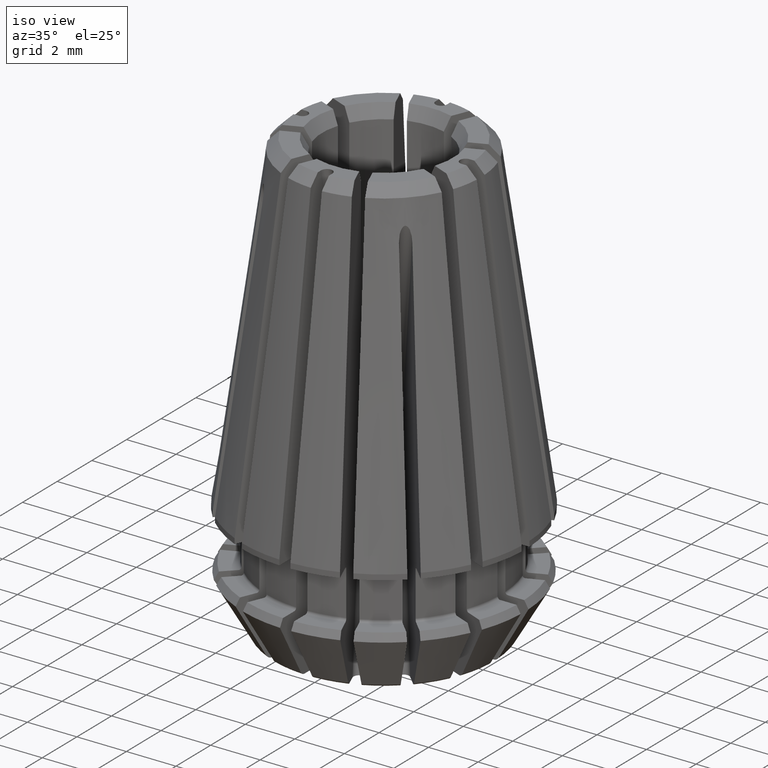
[diagram: clean part render]
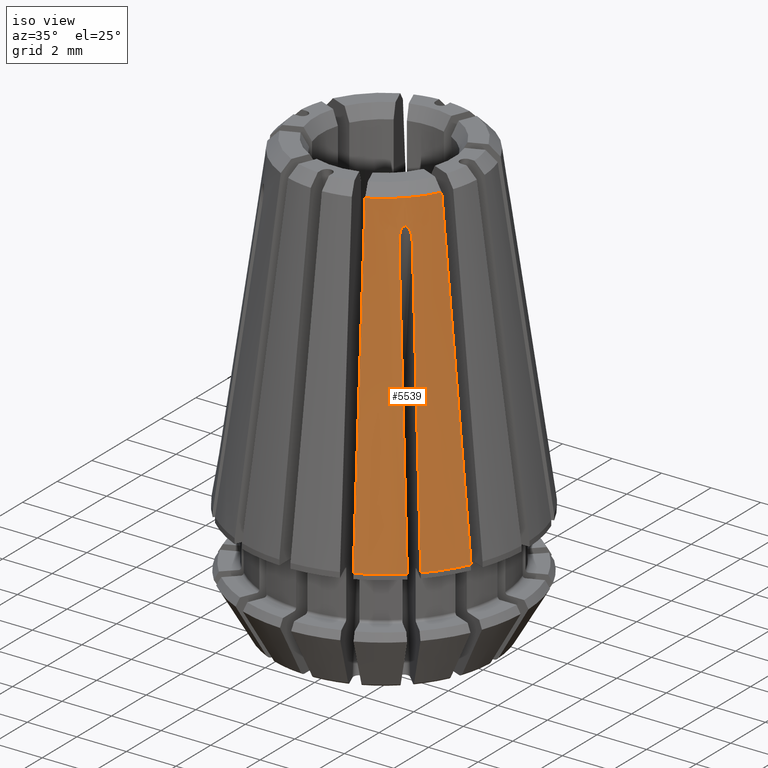
[diagram: tour spotlight — one face highlighted and labeled with its STEP entity id]
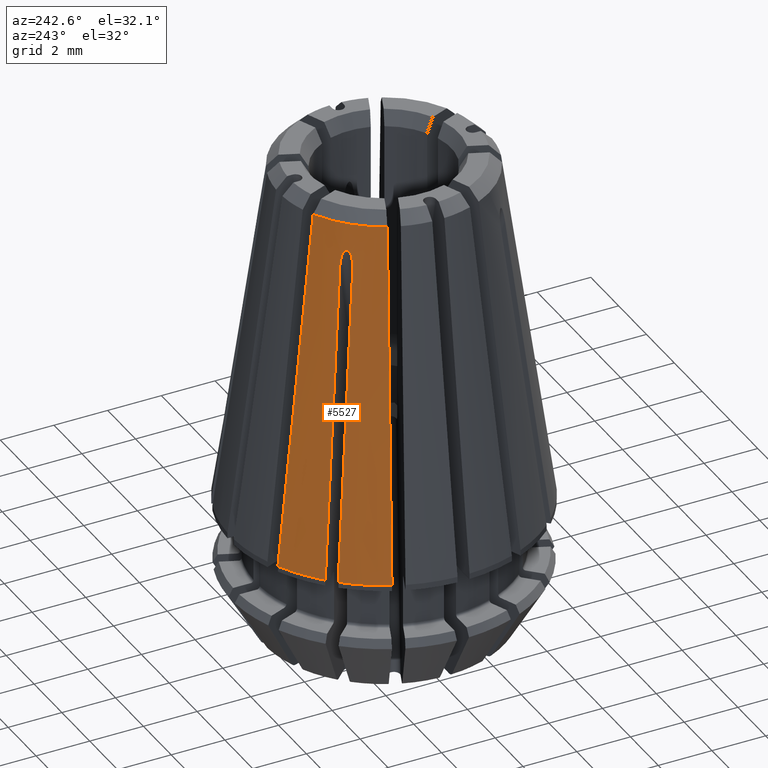
[diagram: tour spotlight — one face highlighted and labeled with its STEP entity id]
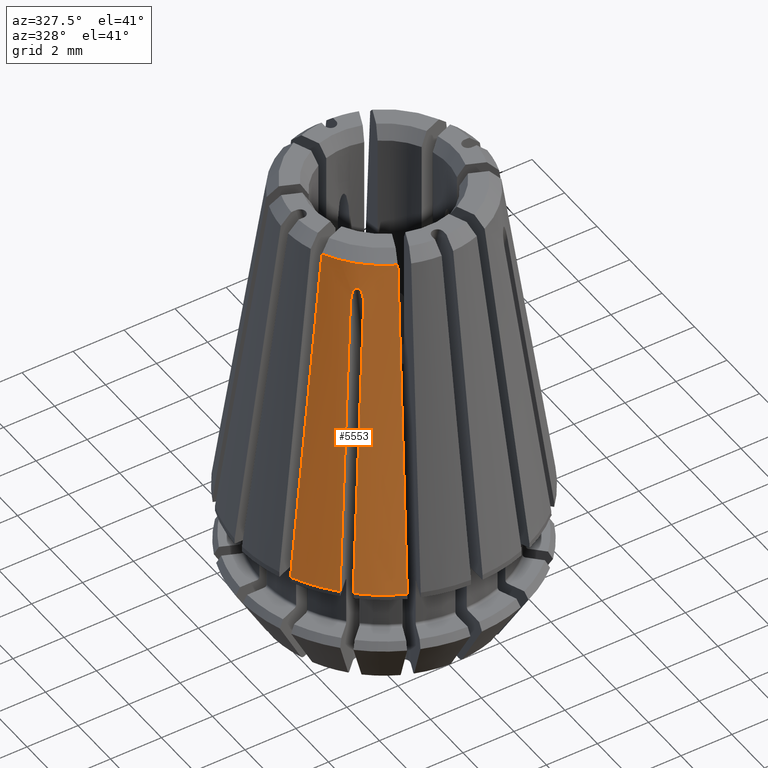
[diagram: tour spotlight — one face highlighted and labeled with its STEP entity id]
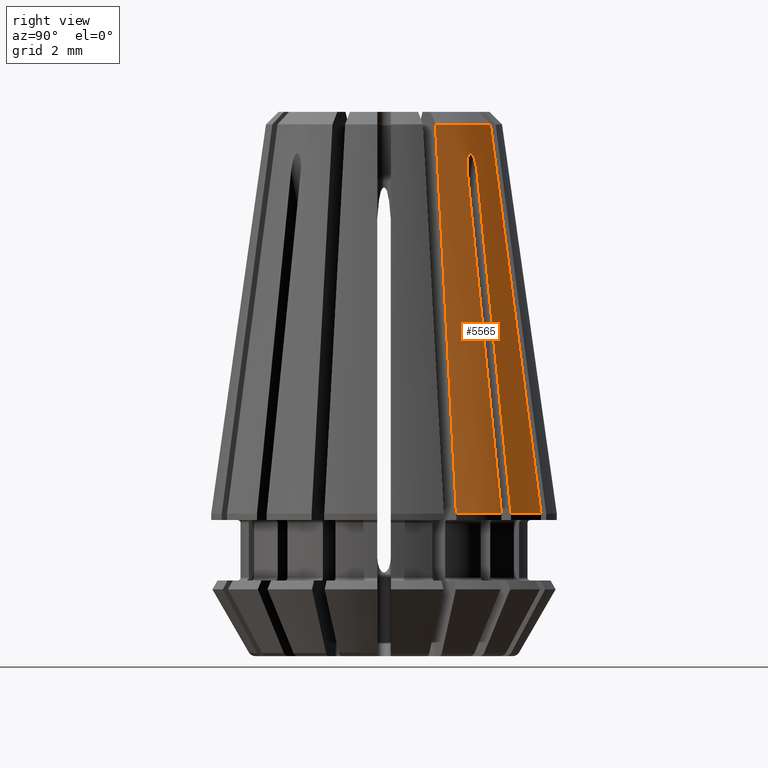
[diagram: tour spotlight — one face highlighted and labeled with its STEP entity id]
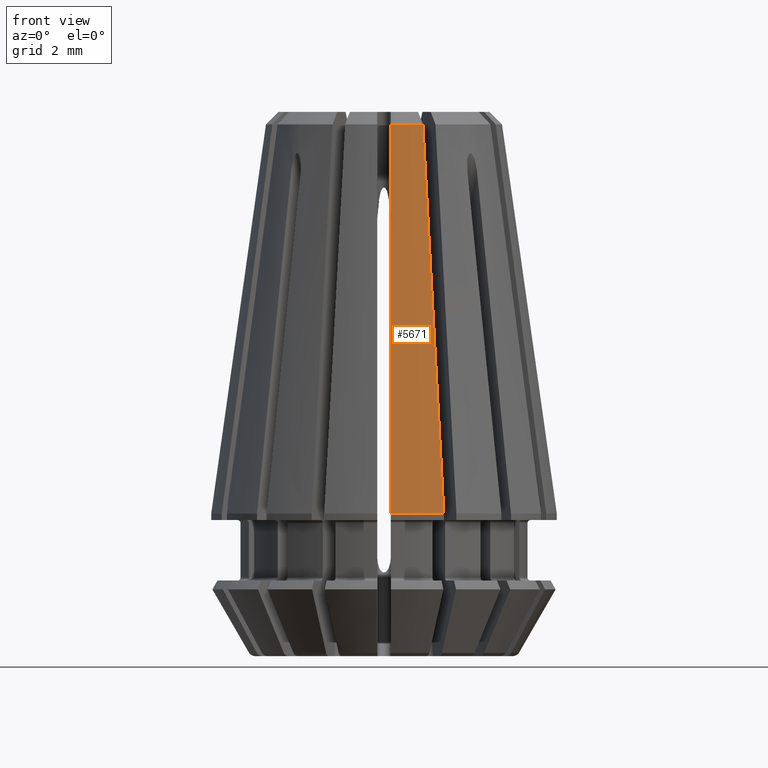
[diagram: tour spotlight — one face highlighted and labeled with its STEP entity id]
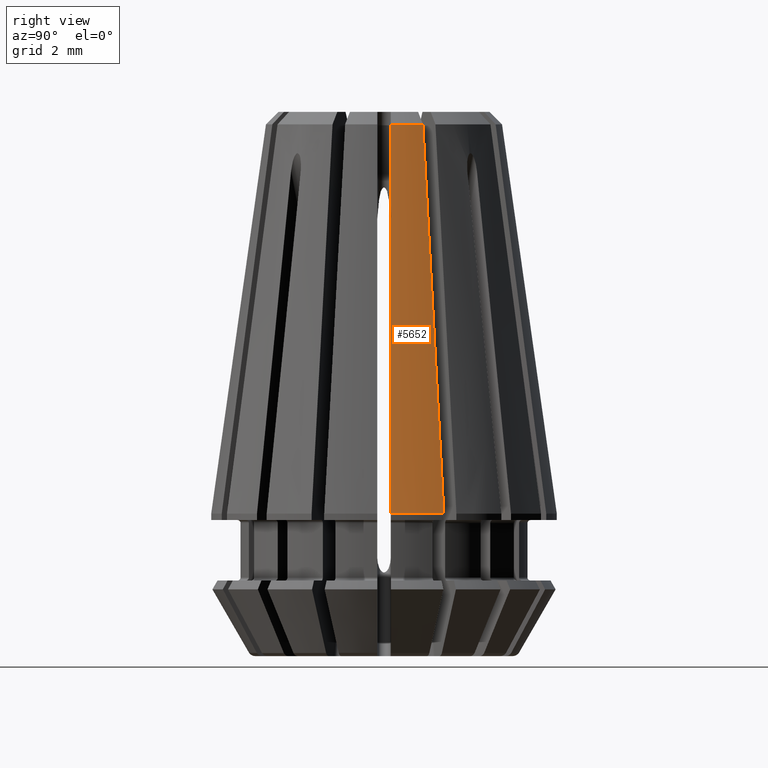
[diagram: tour spotlight — one face highlighted and labeled with its STEP entity id]
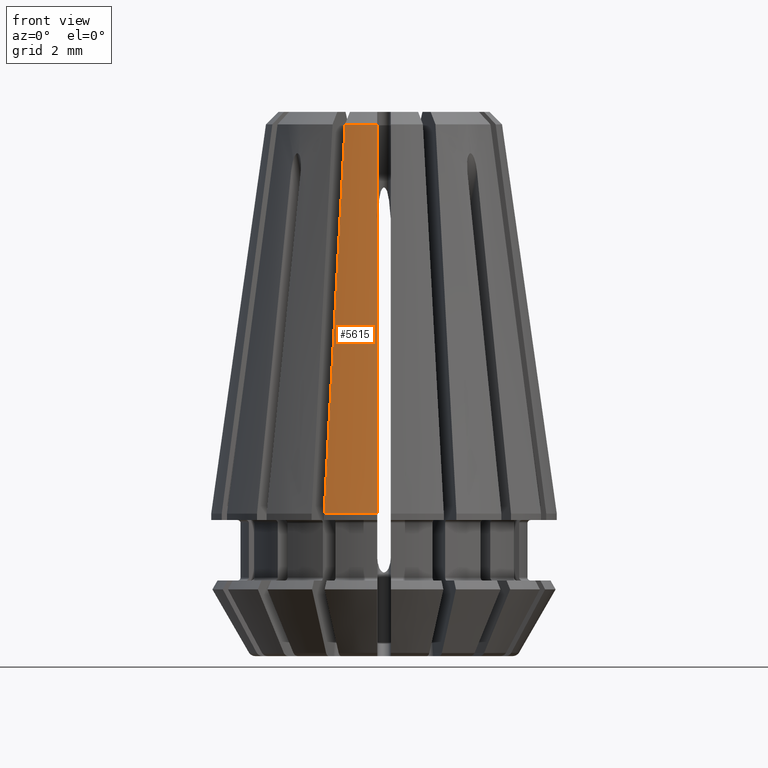
[diagram: tour spotlight — one face highlighted and labeled with its STEP entity id]
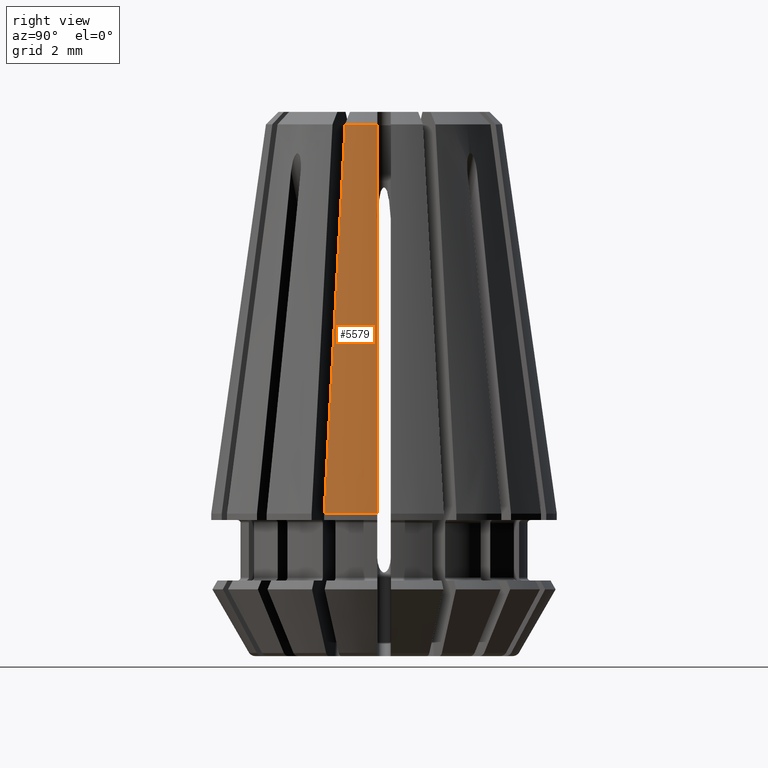
[diagram: tour spotlight — one face highlighted and labeled with its STEP entity id]
A machine part: a face-by-face anatomy tour. The part has 291 B-rep faces; the first image is the clean iso view, then the 8 largest visible faces are spotlighted one at a time (largest first), each with its STEP entity span.

Face 1 — iso view, entity #5539. In plain terms, the highlighted conical surface has half-angle 8 deg.
Definition (entity closure, byte-faithful):
#31=CONICAL_SURFACE('',#5920,3.85269873151772,0.139626340159546);
#192=B_SPLINE_CURVE_WITH_KNOTS('',3,(#8524,#8525,#8526,#8527,#8528,#8529,
#8530),.UNSPECIFIED.,.F.,.F.,(4,3,4),(2.01972011447644E-7,0.00686523368727786,
0.0130026657099401),.UNSPECIFIED.);
#193=B_SPLINE_CURVE_WITH_KNOTS('',3,(#8531,#8532,#8533,#8534,#8535,#8536,
#8537),.UNSPECIFIED.,.F.,.F.,(4,3,4),(2.01968545546605E-7,0.0100422919489948,
0.0114444903141262),.UNSPECIFIED.);
#194=B_SPLINE_CURVE_WITH_KNOTS('',3,(#8539,#8540,#8541,#8542,#8543,#8544,
#8545,#8546,#8547),.UNSPECIFIED.,.F.,.F.,(4,1,1,1,1,1,4),(0.,0.000332674569886382,
0.000499011854829573,0.000665349139772764,0.000831686424715955,0.000998023709659146,
0.00133069827954553),.UNSPECIFIED.);
#195=B_SPLINE_CURVE_WITH_KNOTS('',3,(#8549,#8550,#8551,#8552,#8553,#8554,
#8555),.UNSPECIFIED.,.F.,.F.,(4,3,4),(2.01968545546148E-7,0.0100422919489948,
0.0114444903141291),.UNSPECIFIED.);
#196=B_SPLINE_CURVE_WITH_KNOTS('',3,(#8559,#8560,#8561,#8562,#8563,#8564,
#8565),.UNSPECIFIED.,.F.,.F.,(4,3,4),(2.01972011449362E-7,0.00686523368727786,
0.0130026657099401),.UNSPECIFIED.);
#1184=CIRCLE('',#5903,5.7199263185558);
#1193=CIRCLE('',#5918,3.9103728783852);
#1195=CIRCLE('',#5921,5.7199263185558);
#1622=ORIENTED_EDGE('',*,*,#3426,.F.);
#1623=ORIENTED_EDGE('',*,*,#3428,.T.);
#1624=ORIENTED_EDGE('',*,*,#3409,.F.);
#1625=ORIENTED_EDGE('',*,*,#3429,.T.);
#1626=ORIENTED_EDGE('',*,*,#3430,.T.);
#1627=ORIENTED_EDGE('',*,*,#3431,.F.);
#1628=ORIENTED_EDGE('',*,*,#3432,.F.);
#1629=ORIENTED_EDGE('',*,*,#3433,.F.);
#3409=EDGE_CURVE('',#4307,#4305,#1184,.T.);
#3426=EDGE_CURVE('',#4318,#4319,#1193,.T.);
#3428=EDGE_CURVE('',#4318,#4305,#192,.T.);
#3429=EDGE_CURVE('',#4307,#4320,#193,.T.);
#3430=EDGE_CURVE('',#4320,#4321,#194,.T.);
#3431=EDGE_CURVE('',#4322,#4321,#195,.T.);
#3432=EDGE_CURVE('',#4323,#4322,#1195,.T.);
#3433=EDGE_CURVE('',#4319,#4323,#196,.T.);
#4305=VERTEX_POINT('',#8469);
#4307=VERTEX_POINT('',#8473);
#4318=VERTEX_POINT('',#8519);
#4319=VERTEX_POINT('',#8521);
#4320=VERTEX_POINT('',#8538);
#4321=VERTEX_POINT('',#8548);
#4322=VERTEX_POINT('',#8556);
#4323=VERTEX_POINT('',#8558);
#4874=EDGE_LOOP('',(#1622,#1623,#1624,#1625,#1626,#1627,#1628,#1629));
#5168=FACE_BOUND('',#4874,.T.);
#5539=ADVANCED_FACE('',(#5168),#31,.T.);
#5903=AXIS2_PLACEMENT_3D('',#8474,#6680,#6681);
#5918=AXIS2_PLACEMENT_3D('',#8520,#6714,#6715);
#5920=AXIS2_PLACEMENT_3D('',#8523,#6718,#6719);
#5921=AXIS2_PLACEMENT_3D('',#8557,#6720,#6721);
#6680=DIRECTION('',(0.,0.,-1.));
#6681=DIRECTION('',(-1.,0.,0.));
#6714=DIRECTION('',(0.,0.,1.));
#6715=DIRECTION('',(1.,0.,0.));
#6718=DIRECTION('',(0.,0.,-1.));
#6719=DIRECTION('',(-1.,0.,0.));
#6720=DIRECTION('',(0.,0.,-1.));
#6721=DIRECTION('',(-1.,0.,0.));
#8469=CARTESIAN_POINT('',(2.39509977930997,-5.19432903625258,0.213985362388708));
#8473=CARTESIAN_POINT('',(3.88236927731962,-4.20056732885357,0.213985362388709));
#8474=CARTESIAN_POINT('',(0.,0.,0.213985362388708));
#8519=CARTESIAN_POINT('',(1.70182858191347,-3.52062430909533,13.0896271216148));
#8520=CARTESIAN_POINT('',(0.,0.,13.0896271216148));
#8521=CARTESIAN_POINT('',(3.52062430909533,-1.70182858191348,13.0896271216148));
#8523=CARTESIAN_POINT('',(0.,0.,13.5));
#8524=CARTESIAN_POINT('',(1.70182858191347,-3.52062430909532,13.0896271216148));
#8525=CARTESIAN_POINT('',(1.82390236505162,-3.81533649195763,10.8236261179301));
#8526=CARTESIAN_POINT('',(1.94592945714111,-4.10993595265702,8.55760793787163));
#8527=CARTESIAN_POINT('',(2.06793289259499,-4.4044783011859,6.291581063667));
#8528=CARTESIAN_POINT('',(2.17700562859865,-4.66780317973108,4.26572211872968));
#8529=CARTESIAN_POINT('',(2.28605869873752,-4.93108058067876,2.23985594353853));
#8530=CARTESIAN_POINT('',(2.39509977930997,-5.19432903625258,0.213985362388708));
#8531=CARTESIAN_POINT('',(3.88236927731962,-4.20056732885357,0.213985362388709));
#8532=CARTESIAN_POINT('',(3.55270423156772,-3.87090228310166,3.52872263054954));
#8533=CARTESIAN_POINT('',(3.22298441260145,-3.5411824641354,6.84344900869277));
#8534=CARTESIAN_POINT('',(2.89313103454606,-3.21132908608001,10.1581488050071));
#8535=CARTESIAN_POINT('',(2.84707290633126,-3.1652709578652,10.6209873822934));
#8536=CARTESIAN_POINT('',(2.80101201427255,-3.1192100658065,11.0838254095289));
#8537=CARTESIAN_POINT('',(2.75494794565243,-3.07314599718638,11.5466628044507));
#8538=CARTESIAN_POINT('',(2.75494794565243,-3.07314599718638,11.5466628044507));
#8539=CARTESIAN_POINT('',(2.75494794565244,-3.07314599718638,11.5466628044507));
#8540=CARTESIAN_POINT('',(2.74392127556007,-3.0621193270925,11.6574553465223));
#8541=CARTESIAN_POINT('',(2.74303656250432,-3.0313103019695,11.8245449900078));
#8542=CARTESIAN_POINT('',(2.76871868643322,-2.96923165259295,12.0287945747035));
#8543=CARTESIAN_POINT('',(2.85450302026145,-2.85735004851649,12.1826044210386));
#8544=CARTESIAN_POINT('',(2.96815939939212,-2.76919034012855,12.0322696260341));
#8545=CARTESIAN_POINT('',(3.03098339730815,-2.74309981841188,11.8258970181695));
#8546=CARTESIAN_POINT('',(3.06207571277305,-2.74387766123463,11.65789356963));
#8547=CARTESIAN_POINT('',(3.07314599718909,-2.75494794564874,11.5466628044539));
#8548=CARTESIAN_POINT('',(3.07314599718609,-2.75494794565214,11.5466628044536));
#8549=CARTESIAN_POINT('',(4.20056732885357,-3.88236927731962,0.213985362388709));
#8550=CARTESIAN_POINT('',(3.87090228310166,-3.55270423156772,3.52872263054954));
#8551=CARTESIAN_POINT('',(3.5411824641354,-3.22298441260145,6.84344900869277));
#8552=CARTESIAN_POINT('',(3.21132908608001,-2.89313103454606,10.1581488050071));
#8553=CARTESIAN_POINT('',(3.1652709578651,-2.84707290633116,10.6209873822944));
#8554=CARTESIAN_POINT('',(3.1192100658063,-2.80101201427236,11.0838254095308));
#8555=CARTESIAN_POINT('',(3.07314599718609,-2.75494794565214,11.5466628044536));
#8556=CARTESIAN_POINT('',(4.20056732885357,-3.88236927731962,0.213985362388709));
#8557=CARTESIAN_POINT('',(0.,0.,0.213985362388708));
#8558=CARTESIAN_POINT('',(5.19432903625257,-2.39509977930997,0.213985362388708));
#8559=CARTESIAN_POINT('',(3.52062430909532,-1.70182858191348,13.0896271216148));
#8560=CARTESIAN_POINT('',(3.81533649195763,-1.82390236505163,10.8236261179301));
#8561=CARTESIAN_POINT('',(4.10993595265702,-1.94592945714111,8.55760793787163));
#8562=CARTESIAN_POINT('',(4.4044783011859,-2.067932892595,6.291581063667));
#8563=CARTESIAN_POINT('',(4.66780317973108,-2.17700562859866,4.26572211872968));
#8564=CARTESIAN_POINT('',(4.93108058067876,-2.28605869873753,2.23985594353853));
#8565=CARTESIAN_POINT('',(5.19432903625257,-2.39509977930997,0.213985362388709));

Face 2 — auxiliary view, entity #5527. In plain terms, the highlighted conical surface has half-angle 8 deg.
Definition (entity closure, byte-faithful):
#25=CONICAL_SURFACE('',#5886,3.85269873151772,0.139626340159546);
#182=B_SPLINE_CURVE_WITH_KNOTS('',3,(#8374,#8375,#8376,#8377,#8378,#8379,
#8380),.UNSPECIFIED.,.F.,.F.,(4,3,4),(2.01972011447644E-7,0.00686523368727786,
0.0130026657099401),.UNSPECIFIED.);
#183=B_SPLINE_CURVE_WITH_KNOTS('',3,(#8381,#8382,#8383,#8384,#8385,#8386,
#8387),.UNSPECIFIED.,.F.,.F.,(4,3,4),(2.01968545546148E-7,0.0100422919489948,
0.0114444903141313),.UNSPECIFIED.);
#184=B_SPLINE_CURVE_WITH_KNOTS('',3,(#8389,#8390,#8391,#8392,#8393,#8394,
#8395,#8396,#8397),.UNSPECIFIED.,.F.,.F.,(4,1,1,1,1,1,4),(0.,0.00033267456988377,
0.000499011854825655,0.00066534913976754,0.000831686424709425,0.00099802370965131,
0.00133069827953508),.UNSPECIFIED.);
#185=B_SPLINE_CURVE_WITH_KNOTS('',3,(#8399,#8400,#8401,#8402,#8403,#8404,
#8405),.UNSPECIFIED.,.F.,.F.,(4,3,4),(2.01968545547088E-7,0.0100422919489948,
0.0114444903141371),.UNSPECIFIED.);
#186=B_SPLINE_CURVE_WITH_KNOTS('',3,(#8409,#8410,#8411,#8412,#8413,#8414,
#8415),.UNSPECIFIED.,.F.,.F.,(4,3,4),(2.01972011449362E-7,0.00686523368727786,
0.0130026657099401),.UNSPECIFIED.);
#1162=CIRCLE('',#5869,5.7199263185558);
#1171=CIRCLE('',#5884,3.9103728783852);
#1173=CIRCLE('',#5887,5.7199263185558);
#1566=ORIENTED_EDGE('',*,*,#3380,.F.);
#1567=ORIENTED_EDGE('',*,*,#3382,.T.);
#1568=ORIENTED_EDGE('',*,*,#3363,.F.);
#1569=ORIENTED_EDGE('',*,*,#3383,.T.);
#1570=ORIENTED_EDGE('',*,*,#3384,.T.);
#1571=ORIENTED_EDGE('',*,*,#3385,.F.);
#1572=ORIENTED_EDGE('',*,*,#3386,.F.);
#1573=ORIENTED_EDGE('',*,*,#3387,.F.);
#3363=EDGE_CURVE('',#4271,#4269,#1162,.T.);
#3380=EDGE_CURVE('',#4282,#4283,#1171,.T.);
#3382=EDGE_CURVE('',#4282,#4269,#182,.T.);
#3383=EDGE_CURVE('',#4271,#4284,#183,.T.);
#3384=EDGE_CURVE('',#4284,#4285,#184,.T.);
#3385=EDGE_CURVE('',#4286,#4285,#185,.T.);
#3386=EDGE_CURVE('',#4287,#4286,#1173,.T.);
#3387=EDGE_CURVE('',#4283,#4287,#186,.T.);
#4269=VERTEX_POINT('',#8319);
#4271=VERTEX_POINT('',#8323);
#4282=VERTEX_POINT('',#8369);
#4283=VERTEX_POINT('',#8371);
#4284=VERTEX_POINT('',#8388);
#4285=VERTEX_POINT('',#8398);
#4286=VERTEX_POINT('',#8406);
#4287=VERTEX_POINT('',#8408);
#4862=EDGE_LOOP('',(#1566,#1567,#1568,#1569,#1570,#1571,#1572,#1573));
#5156=FACE_BOUND('',#4862,.T.);
#5527=ADVANCED_FACE('',(#5156),#25,.T.);
#5869=AXIS2_PLACEMENT_3D('',#8324,#6598,#6599);
#5884=AXIS2_PLACEMENT_3D('',#8370,#6632,#6633);
#5886=AXIS2_PLACEMENT_3D('',#8373,#6636,#6637);
#5887=AXIS2_PLACEMENT_3D('',#8407,#6638,#6639);
#6598=DIRECTION('',(0.,0.,-1.));
#6599=DIRECTION('',(-1.,0.,0.));
#6632=DIRECTION('',(0.,0.,1.));
#6633=DIRECTION('',(1.,0.,0.));
#6636=DIRECTION('',(0.,0.,-1.));
#6637=DIRECTION('',(-1.,0.,0.));
#6638=DIRECTION('',(0.,0.,-1.));
#6639=DIRECTION('',(-1.,0.,0.));
#8319=CARTESIAN_POINT('',(-2.39509977930997,5.19432903625257,0.213985362388708));
#8323=CARTESIAN_POINT('',(-3.88236927731962,4.20056732885357,0.213985362388709));
#8324=CARTESIAN_POINT('',(0.,0.,0.213985362388708));
#8369=CARTESIAN_POINT('',(-1.70182858191348,3.52062430909532,13.0896271216148));
#8370=CARTESIAN_POINT('',(0.,0.,13.0896271216148));
#8371=CARTESIAN_POINT('',(-3.52062430909533,1.70182858191348,13.0896271216148));
#8373=CARTESIAN_POINT('',(0.,0.,13.5));
#8374=CARTESIAN_POINT('',(-1.70182858191348,3.52062430909532,13.0896271216148));
#8375=CARTESIAN_POINT('',(-1.82390236505163,3.81533649195763,10.8236261179301));
#8376=CARTESIAN_POINT('',(-1.94592945714111,4.10993595265702,8.55760793787163));
#8377=CARTESIAN_POINT('',(-2.067932892595,4.40447830118589,6.291581063667));
#8378=CARTESIAN_POINT('',(-2.17700562859866,4.66780317973108,4.26572211872968));
#8379=CARTESIAN_POINT('',(-2.28605869873753,4.93108058067876,2.23985594353853));
#8380=CARTESIAN_POINT('',(-2.39509977930997,5.19432903625257,0.213985362388711));
#8381=CARTESIAN_POINT('',(-3.88236927731962,4.20056732885357,0.213985362388709));
#8382=CARTESIAN_POINT('',(-3.55270423156772,3.87090228310166,3.52872263054954));
#8383=CARTESIAN_POINT('',(-3.22298441260145,3.5411824641354,6.84344900869277));
#8384=CARTESIAN_POINT('',(-2.89313103454606,3.21132908608001,10.1581488050071));
#8385=CARTESIAN_POINT('',(-2.84707290633109,3.16527095786503,10.6209873822951));
#8386=CARTESIAN_POINT('',(-2.80101201427221,3.11921006580616,11.0838254095323));
#8387=CARTESIAN_POINT('',(-2.75494794565192,3.07314599718587,11.5466628044558));
#8388=CARTESIAN_POINT('',(-2.75494794565192,3.07314599718587,11.5466628044558));
#8389=CARTESIAN_POINT('',(-2.75494794565192,3.07314599718588,11.5466628044558));
#8390=CARTESIAN_POINT('',(-2.74392127555994,3.06211932709182,11.6574553465265));
#8391=CARTESIAN_POINT('',(-2.74303656250448,3.03131030196882,11.8245449900106));
#8392=CARTESIAN_POINT('',(-2.76871868643366,2.96923165259231,12.0287945747047));
#8393=CARTESIAN_POINT('',(-2.85450302026131,2.85735004851677,12.1826044210379));
#8394=CARTESIAN_POINT('',(-2.96815939939126,2.76919034012911,12.0322696260358));
#8395=CARTESIAN_POINT('',(-3.03098339730733,2.74309981841213,11.8258970181726));
#8396=CARTESIAN_POINT('',(-3.06207571277195,2.7438776612344,11.6578935696369));
#8397=CARTESIAN_POINT('',(-3.0731459971883,2.75494794564796,11.5466628044618));
#8398=CARTESIAN_POINT('',(-3.07314599719014,2.754947945653,11.5466628044604));
#8399=CARTESIAN_POINT('',(-4.20056732885357,3.88236927731962,0.213985362388709));
#8400=CARTESIAN_POINT('',(-3.87090228310166,3.55270423156772,3.52872263054954));
#8401=CARTESIAN_POINT('',(-3.5411824641354,3.22298441260145,6.84344900869277));
#8402=CARTESIAN_POINT('',(-3.21132908608001,2.89313103454606,10.1581488050071));
#8403=CARTESIAN_POINT('',(-3.16527095786484,2.8470729063309,10.620987382297));
#8404=CARTESIAN_POINT('',(-3.11921006580578,2.80101201427184,11.0838254095361));
#8405=CARTESIAN_POINT('',(-3.0731459971853,2.75494794565136,11.5466628044615));
#8406=CARTESIAN_POINT('',(-4.20056732885356,3.88236927731962,0.213985362388709));
#8407=CARTESIAN_POINT('',(0.,0.,0.213985362388708));
#8408=CARTESIAN_POINT('',(-5.19432903625258,2.39509977930997,0.213985362388708));
#8409=CARTESIAN_POINT('',(-3.52062430909532,1.70182858191348,13.0896271216148));
#8410=CARTESIAN_POINT('',(-3.81533649195763,1.82390236505163,10.8236261179301));
#8411=CARTESIAN_POINT('',(-4.10993595265702,1.94592945714111,8.55760793787163));
#8412=CARTESIAN_POINT('',(-4.4044783011859,2.067932892595,6.291581063667));
#8413=CARTESIAN_POINT('',(-4.66780317973108,2.17700562859866,4.26572211872968));
#8414=CARTESIAN_POINT('',(-4.93108058067876,2.28605869873753,2.23985594353853));
#8415=CARTESIAN_POINT('',(-5.19432903625257,2.39509977930997,0.213985362388708));

Face 3 — auxiliary view, entity #5553. In plain terms, the highlighted conical surface has half-angle 8 deg.
Definition (entity closure, byte-faithful):
#37=CONICAL_SURFACE('',#5957,3.85269873151772,0.139626340159546);
#202=B_SPLINE_CURVE_WITH_KNOTS('',3,(#8683,#8684,#8685,#8686,#8687,#8688,
#8689),.UNSPECIFIED.,.F.,.F.,(4,3,4),(2.01972011447644E-7,0.00686523368727786,
0.0130026657099401),.UNSPECIFIED.);
#203=B_SPLINE_CURVE_WITH_KNOTS('',3,(#8690,#8691,#8692,#8693,#8694,#8695,
#8696),.UNSPECIFIED.,.F.,.F.,(4,3,4),(2.01968545546148E-7,0.0100422919489948,
0.0114444903141297),.UNSPECIFIED.);
#204=B_SPLINE_CURVE_WITH_KNOTS('',3,(#8698,#8699,#8700,#8701,#8702,#8703,
#8704,#8705,#8706),.UNSPECIFIED.,.F.,.F.,(4,1,1,1,1,1,4),(8.75178122104572E-15,
0.000332674569890137,0.00049901185483083,0.000665349139771523,0.000831686424712216,
0.000998023709652908,0.00133069827953429),.UNSPECIFIED.);
#205=B_SPLINE_CURVE_WITH_KNOTS('',3,(#8708,#8709,#8710,#8711,#8712,#8713,
#8714),.UNSPECIFIED.,.F.,.F.,(4,3,4),(2.01968545546605E-7,0.0100422919489948,
0.0114444903141394),.UNSPECIFIED.);
#206=B_SPLINE_CURVE_WITH_KNOTS('',3,(#8718,#8719,#8720,#8721,#8722,#8723,
#8724),.UNSPECIFIED.,.F.,.F.,(4,3,4),(2.01972011447644E-7,0.00686523368727786,
0.0130026657099401),.UNSPECIFIED.);
#1205=CIRCLE('',#5936,5.7199263185558);
#1216=CIRCLE('',#5955,3.9103728783852);
#1218=CIRCLE('',#5958,5.7199263185558);
#1686=ORIENTED_EDGE('',*,*,#3477,.F.);
#1687=ORIENTED_EDGE('',*,*,#3479,.T.);
#1688=ORIENTED_EDGE('',*,*,#3454,.F.);
#1689=ORIENTED_EDGE('',*,*,#3480,.T.);
#1690=ORIENTED_EDGE('',*,*,#3481,.T.);
#1691=ORIENTED_EDGE('',*,*,#3482,.F.);
#1692=ORIENTED_EDGE('',*,*,#3483,.F.);
#1693=ORIENTED_EDGE('',*,*,#3484,.F.);
#3454=EDGE_CURVE('',#4341,#4339,#1205,.T.);
#3477=EDGE_CURVE('',#4356,#4357,#1216,.T.);
#3479=EDGE_CURVE('',#4356,#4339,#202,.T.);
#3480=EDGE_CURVE('',#4341,#4358,#203,.T.);
#3481=EDGE_CURVE('',#4358,#4359,#204,.T.);
#3482=EDGE_CURVE('',#4360,#4359,#205,.T.);
#3483=EDGE_CURVE('',#4361,#4360,#1218,.T.);
#3484=EDGE_CURVE('',#4357,#4361,#206,.T.);
#4339=VERTEX_POINT('',#8616);
#4341=VERTEX_POINT('',#8620);
#4356=VERTEX_POINT('',#8678);
#4357=VERTEX_POINT('',#8680);
#4358=VERTEX_POINT('',#8697);
#4359=VERTEX_POINT('',#8707);
#4360=VERTEX_POINT('',#8715);
#4361=VERTEX_POINT('',#8717);
#4888=EDGE_LOOP('',(#1686,#1687,#1688,#1689,#1690,#1691,#1692,#1693));
#5182=FACE_BOUND('',#4888,.T.);
#5553=ADVANCED_FACE('',(#5182),#37,.T.);
#5936=AXIS2_PLACEMENT_3D('',#8621,#6760,#6761);
#5955=AXIS2_PLACEMENT_3D('',#8679,#6806,#6807);
#5957=AXIS2_PLACEMENT_3D('',#8682,#6810,#6811);
#5958=AXIS2_PLACEMENT_3D('',#8716,#6812,#6813);
#6760=DIRECTION('',(0.,0.,-1.));
#6761=DIRECTION('',(-1.,0.,0.));
#6806=DIRECTION('',(0.,0.,1.));
#6807=DIRECTION('',(1.,0.,0.));
#6810=DIRECTION('',(0.,0.,-1.));
#6811=DIRECTION('',(-1.,0.,0.));
#6812=DIRECTION('',(0.,0.,-1.));
#6813=DIRECTION('',(-1.,0.,0.));
#8616=CARTESIAN_POINT('',(-5.19432903625257,-2.39509977930997,0.213985362388708));
#8620=CARTESIAN_POINT('',(-4.20056732885357,-3.88236927731962,0.213985362388709));
#8621=CARTESIAN_POINT('',(0.,0.,0.213985362388708));
#8678=CARTESIAN_POINT('',(-3.52062430909532,-1.70182858191348,13.0896271216148));
#8679=CARTESIAN_POINT('',(0.,0.,13.0896271216148));
#8680=CARTESIAN_POINT('',(-1.70182858191348,-3.52062430909532,13.0896271216148));
#8682=CARTESIAN_POINT('',(0.,0.,13.5));
#8683=CARTESIAN_POINT('',(-3.52062430909532,-1.70182858191348,13.0896271216148));
#8684=CARTESIAN_POINT('',(-3.81533649195763,-1.82390236505163,10.8236261179301));
#8685=CARTESIAN_POINT('',(-4.10993595265702,-1.94592945714111,8.55760793787163));
#8686=CARTESIAN_POINT('',(-4.40447830118589,-2.067932892595,6.291581063667));
#8687=CARTESIAN_POINT('',(-4.66780317973108,-2.17700562859866,4.26572211872968));
#8688=CARTESIAN_POINT('',(-4.93108058067876,-2.28605869873753,2.23985594353853));
#8689=CARTESIAN_POINT('',(-5.19432903625257,-2.39509977930997,0.213985362388711));
#8690=CARTESIAN_POINT('',(-4.20056732885357,-3.88236927731962,0.213985362388709));
#8691=CARTESIAN_POINT('',(-3.87090228310166,-3.55270423156772,3.52872263054954));
#8692=CARTESIAN_POINT('',(-3.5411824641354,-3.22298441260145,6.84344900869277));
#8693=CARTESIAN_POINT('',(-3.21132908608001,-2.89313103454606,10.1581488050071));
#8694=CARTESIAN_POINT('',(-3.16527095786509,-2.84707290633114,10.6209873822945));
#8695=CARTESIAN_POINT('',(-3.11921006580627,-2.80101201427232,11.0838254095312));
#8696=CARTESIAN_POINT('',(-3.07314599718603,-2.75494794565209,11.5466628044542));
#8697=CARTESIAN_POINT('',(-3.0731459971869,-2.75494794565296,11.5466628044455));
#8698=CARTESIAN_POINT('',(-3.07314599718603,-2.75494794565209,11.5466628044542));
#8699=CARTESIAN_POINT('',(-3.06211932709214,-2.74392127556009,11.6574553465241));
#8700=CARTESIAN_POINT('',(-3.03131030196723,-2.74303656250481,11.8245449900174));
#8701=CARTESIAN_POINT('',(-2.96923165259102,-2.7687186864344,12.0287945747079));
#8702=CARTESIAN_POINT('',(-2.8573500485144,-2.85450302026373,12.1826044210375));
#8703=CARTESIAN_POINT('',(-2.76919034012917,-2.96815939939147,12.0322696260343));
#8704=CARTESIAN_POINT('',(-2.74309981841207,-3.03098339730734,11.825897018173));
#8705=CARTESIAN_POINT('',(-2.74387766123438,-3.06207571277168,11.6578935696385));
#8706=CARTESIAN_POINT('',(-2.75494794564773,-3.07314599718807,11.5466628044641));
#8707=CARTESIAN_POINT('',(-2.75494794565307,-3.07314599719022,11.5466628044626));
#8708=CARTESIAN_POINT('',(-3.88236927731962,-4.20056732885357,0.213985362388709));
#8709=CARTESIAN_POINT('',(-3.55270423156772,-3.87090228310166,3.52872263054954));
#8710=CARTESIAN_POINT('',(-3.22298441260145,-3.5411824641354,6.84344900869277));
#8711=CARTESIAN_POINT('',(-2.89313103454606,-3.21132908608001,10.1581488050071));
#8712=CARTESIAN_POINT('',(-2.84707290633082,-3.16527095786477,10.6209873822977));
#8713=CARTESIAN_POINT('',(-2.80101201427169,-3.11921006580563,11.0838254095376));
#8714=CARTESIAN_POINT('',(-2.75494794565113,-3.07314599718508,11.5466628044638));
#8715=CARTESIAN_POINT('',(-3.88236927731962,-4.20056732885357,0.213985362388709));
#8716=CARTESIAN_POINT('',(0.,0.,0.213985362388708));
#8717=CARTESIAN_POINT('',(-2.39509977930997,-5.19432903625257,0.213985362388709));
#8718=CARTESIAN_POINT('',(-1.70182858191348,-3.52062430909532,13.0896271216148));
#8719=CARTESIAN_POINT('',(-1.82390236505163,-3.81533649195763,10.8236261179301));
#8720=CARTESIAN_POINT('',(-1.94592945714111,-4.10993595265702,8.55760793787163));
#8721=CARTESIAN_POINT('',(-2.067932892595,-4.4044783011859,6.291581063667));
#8722=CARTESIAN_POINT('',(-2.17700562859866,-4.66780317973108,4.26572211872968));
#8723=CARTESIAN_POINT('',(-2.28605869873753,-4.93108058067876,2.23985594353853));
#8724=CARTESIAN_POINT('',(-2.39509977930997,-5.19432903625257,0.213985362388711));

Face 4 — right view, entity #5565. In plain terms, the highlighted conical surface has half-angle 8 deg.
Definition (entity closure, byte-faithful):
#43=CONICAL_SURFACE('',#5990,3.85269873151772,0.139626340159546);
#212=B_SPLINE_CURVE_WITH_KNOTS('',3,(#8830,#8831,#8832,#8833,#8834,#8835,
#8836),.UNSPECIFIED.,.F.,.F.,(4,3,4),(2.01972011447644E-7,0.00686523368727786,
0.0130026657099401),.UNSPECIFIED.);
#213=B_SPLINE_CURVE_WITH_KNOTS('',3,(#8837,#8838,#8839,#8840,#8841,#8842,
#8843),.UNSPECIFIED.,.F.,.F.,(4,3,4),(2.01968545546605E-7,0.0100422919489948,
0.0114444903141321),.UNSPECIFIED.);
#214=B_SPLINE_CURVE_WITH_KNOTS('',3,(#8845,#8846,#8847,#8848,#8849,#8850,
#8851,#8852,#8853),.UNSPECIFIED.,.F.,.F.,(4,1,1,1,1,1,4),(1.78811203067275E-18,
0.000332674569885138,0.000499011854827706,0.000665349139770274,0.000831686424712842,
0.00099802370965541,0.00133069827954055),.UNSPECIFIED.);
#215=B_SPLINE_CURVE_WITH_KNOTS('',3,(#8855,#8856,#8857,#8858,#8859,#8860,
#8861),.UNSPECIFIED.,.F.,.F.,(4,3,4),(2.01968545546148E-7,0.0100422919489948,
0.0114444903141291),.UNSPECIFIED.);
#216=B_SPLINE_CURVE_WITH_KNOTS('',3,(#8865,#8866,#8867,#8868,#8869,#8870,
#8871),.UNSPECIFIED.,.F.,.F.,(4,3,4),(2.01972011447644E-7,0.00686523368727786,
0.0130026657099401),.UNSPECIFIED.);
#1228=CIRCLE('',#5973,5.7199263185558);
#1237=CIRCLE('',#5988,3.9103728783852);
#1239=CIRCLE('',#5991,5.7199263185558);
#1742=ORIENTED_EDGE('',*,*,#3522,.F.);
#1743=ORIENTED_EDGE('',*,*,#3524,.T.);
#1744=ORIENTED_EDGE('',*,*,#3505,.F.);
#1745=ORIENTED_EDGE('',*,*,#3525,.T.);
#1746=ORIENTED_EDGE('',*,*,#3526,.T.);
#1747=ORIENTED_EDGE('',*,*,#3527,.F.);
#1748=ORIENTED_EDGE('',*,*,#3528,.F.);
#1749=ORIENTED_EDGE('',*,*,#3529,.F.);
#3505=EDGE_CURVE('',#4379,#4377,#1228,.T.);
#3522=EDGE_CURVE('',#4390,#4391,#1237,.T.);
#3524=EDGE_CURVE('',#4390,#4377,#212,.T.);
#3525=EDGE_CURVE('',#4379,#4392,#213,.T.);
#3526=EDGE_CURVE('',#4392,#4393,#214,.T.);
#3527=EDGE_CURVE('',#4394,#4393,#215,.T.);
#3528=EDGE_CURVE('',#4395,#4394,#1239,.T.);
#3529=EDGE_CURVE('',#4391,#4395,#216,.T.);
#4377=VERTEX_POINT('',#8775);
#4379=VERTEX_POINT('',#8779);
#4390=VERTEX_POINT('',#8825);
#4391=VERTEX_POINT('',#8827);
#4392=VERTEX_POINT('',#8844);
#4393=VERTEX_POINT('',#8854);
#4394=VERTEX_POINT('',#8862);
#4395=VERTEX_POINT('',#8864);
#4900=EDGE_LOOP('',(#1742,#1743,#1744,#1745,#1746,#1747,#1748,#1749));
#5194=FACE_BOUND('',#4900,.T.);
#5565=ADVANCED_FACE('',(#5194),#43,.T.);
#5973=AXIS2_PLACEMENT_3D('',#8780,#6852,#6853);
#5988=AXIS2_PLACEMENT_3D('',#8826,#6886,#6887);
#5990=AXIS2_PLACEMENT_3D('',#8829,#6890,#6891);
#5991=AXIS2_PLACEMENT_3D('',#8863,#6892,#6893);
#6852=DIRECTION('',(0.,0.,-1.));
#6853=DIRECTION('',(-1.,0.,0.));
#6886=DIRECTION('',(0.,0.,1.));
#6887=DIRECTION('',(1.,0.,0.));
#6890=DIRECTION('',(0.,0.,-1.));
#6891=DIRECTION('',(-1.,0.,0.));
#6892=DIRECTION('',(0.,0.,-1.));
#6893=DIRECTION('',(-1.,0.,0.));
#8775=CARTESIAN_POINT('',(5.19432903625257,2.39509977930997,0.213985362388708));
#8779=CARTESIAN_POINT('',(4.20056732885357,3.88236927731962,0.213985362388709));
#8780=CARTESIAN_POINT('',(0.,0.,0.213985362388708));
#8825=CARTESIAN_POINT('',(3.52062430909532,1.70182858191348,13.0896271216148));
#8826=CARTESIAN_POINT('',(0.,0.,13.0896271216148));
#8827=CARTESIAN_POINT('',(1.70182858191348,3.52062430909532,13.0896271216148));
#8829=CARTESIAN_POINT('',(0.,0.,13.5));
#8830=CARTESIAN_POINT('',(3.52062430909532,1.70182858191348,13.0896271216148));
#8831=CARTESIAN_POINT('',(3.81533649195763,1.82390236505163,10.8236261179301));
#8832=CARTESIAN_POINT('',(4.10993595265702,1.94592945714111,8.55760793787163));
#8833=CARTESIAN_POINT('',(4.40447830118589,2.067932892595,6.291581063667));
#8834=CARTESIAN_POINT('',(4.66780317973108,2.17700562859866,4.26572211872968));
#8835=CARTESIAN_POINT('',(4.93108058067876,2.28605869873753,2.23985594353853));
#8836=CARTESIAN_POINT('',(5.19432903625257,2.39509977930997,0.213985362388711));
#8837=CARTESIAN_POINT('',(4.20056732885357,3.88236927731962,0.213985362388709));
#8838=CARTESIAN_POINT('',(3.87090228310166,3.55270423156772,3.52872263054954));
#8839=CARTESIAN_POINT('',(3.5411824641354,3.22298441260145,6.84344900869277));
#8840=CARTESIAN_POINT('',(3.21132908608001,2.89313103454606,10.1581488050071));
#8841=CARTESIAN_POINT('',(3.16527095786501,2.84707290633106,10.6209873822953));
#8842=CARTESIAN_POINT('',(3.11921006580611,2.80101201427217,11.0838254095328));
#8843=CARTESIAN_POINT('',(3.0731459971858,2.75494794565185,11.5466628044565));
#8844=CARTESIAN_POINT('',(3.0731459971858,2.75494794565185,11.5466628044565));
#8845=CARTESIAN_POINT('',(3.0731459971858,2.75494794565186,11.5466628044565));
#8846=CARTESIAN_POINT('',(3.06211932709167,2.74392127555987,11.6574553465276));
#8847=CARTESIAN_POINT('',(3.03131030196829,2.74303656250472,11.8245449900122));
#8848=CARTESIAN_POINT('',(2.96923165259157,2.76871868643389,12.0287945747077));
#8849=CARTESIAN_POINT('',(2.85735004851336,2.85450302026463,12.1826044210384));
#8850=CARTESIAN_POINT('',(2.7691903401284,2.96815939939274,12.0322696260314));
#8851=CARTESIAN_POINT('',(2.74309981841169,3.03098339730852,11.8258970181685));
#8852=CARTESIAN_POINT('',(2.74387766123468,3.06207571277311,11.6578935696295));
#8853=CARTESIAN_POINT('',(2.75494794564874,3.07314599718909,11.5466628044539));
#8854=CARTESIAN_POINT('',(2.75494794565214,3.07314599718609,11.5466628044536));
#8855=CARTESIAN_POINT('',(3.88236927731962,4.20056732885357,0.213985362388709));
#8856=CARTESIAN_POINT('',(3.55270423156772,3.87090228310166,3.52872263054954));
#8857=CARTESIAN_POINT('',(3.22298441260145,3.5411824641354,6.84344900869277));
#8858=CARTESIAN_POINT('',(2.89313103454606,3.21132908608001,10.1581488050071));
#8859=CARTESIAN_POINT('',(2.84707290633116,3.1652709578651,10.6209873822944));
#8860=CARTESIAN_POINT('',(2.80101201427236,3.1192100658063,11.0838254095309));
#8861=CARTESIAN_POINT('',(2.75494794565214,3.07314599718609,11.5466628044536));
#8862=CARTESIAN_POINT('',(3.88236927731962,4.20056732885357,0.213985362388709));
#8863=CARTESIAN_POINT('',(0.,0.,0.213985362388708));
#8864=CARTESIAN_POINT('',(2.39509977930997,5.19432903625257,0.213985362388708));
#8865=CARTESIAN_POINT('',(1.70182858191348,3.52062430909532,13.0896271216148));
#8866=CARTESIAN_POINT('',(1.82390236505163,3.81533649195763,10.8236261179301));
#8867=CARTESIAN_POINT('',(1.94592945714111,4.10993595265702,8.55760793787163));
#8868=CARTESIAN_POINT('',(2.067932892595,4.4044783011859,6.291581063667));
#8869=CARTESIAN_POINT('',(2.17700562859866,4.66780317973108,4.26572211872968));
#8870=CARTESIAN_POINT('',(2.28605869873753,4.93108058067876,2.23985594353853));
#8871=CARTESIAN_POINT('',(2.39509977930997,5.19432903625257,0.213985362388709));

Face 5 — front view, entity #5671. In plain terms, the highlighted conical surface has half-angle 8 deg.
Definition (entity closure, byte-faithful):
#90=CONICAL_SURFACE('',#6260,3.85269873151772,0.139626340159546);
#308=B_SPLINE_CURVE_WITH_KNOTS('',3,(#9989,#9990,#9991,#9992,#9993,#9994,
#9995),.UNSPECIFIED.,.F.,.F.,(4,3,4),(2.01972011447644E-7,0.00686523368727786,
0.0130026657099401),.UNSPECIFIED.);
#309=B_SPLINE_CURVE_WITH_KNOTS('',3,(#9996,#9997,#9998,#9999,#10000,#10001,
#10002,#10003,#10004,#10005),.UNSPECIFIED.,.F.,.F.,(4,3,3,4),(0.00562028420407044,
0.00726783408943217,0.0145356681624466,0.0186227479342676),
 .UNSPECIFIED.);
#1377=CIRCLE('',#6222,5.7199263185558);
#1395=CIRCLE('',#6255,3.9103728783852);
#2215=ORIENTED_EDGE('',*,*,#3896,.F.);
#2216=ORIENTED_EDGE('',*,*,#3890,.F.);
#2217=ORIENTED_EDGE('',*,*,#3897,.T.);
#2218=ORIENTED_EDGE('',*,*,#3844,.F.);
#3844=EDGE_CURVE('',#4628,#4629,#1377,.T.);
#3890=EDGE_CURVE('',#4659,#4660,#1395,.T.);
#3896=EDGE_CURVE('',#4660,#4628,#308,.T.);
#3897=EDGE_CURVE('',#4659,#4629,#309,.T.);
#4628=VERTEX_POINT('',#9834);
#4629=VERTEX_POINT('',#9836);
#4659=VERTEX_POINT('',#9972);
#4660=VERTEX_POINT('',#9973);
#5006=EDGE_LOOP('',(#2215,#2216,#2217,#2218));
#5300=FACE_BOUND('',#5006,.T.);
#5671=ADVANCED_FACE('',(#5300),#90,.T.);
#6222=AXIS2_PLACEMENT_3D('',#9835,#7453,#7454);
#6255=AXIS2_PLACEMENT_3D('',#9971,#7532,#7533);
#6260=AXIS2_PLACEMENT_3D('',#9988,#7542,#7543);
#7453=DIRECTION('',(0.,0.,-1.));
#7454=DIRECTION('',(-1.,0.,0.));
#7532=DIRECTION('',(0.,0.,1.));
#7533=DIRECTION('',(1.,0.,0.));
#7542=DIRECTION('',(0.,0.,-1.));
#7543=DIRECTION('',(-1.,0.,0.));
#9834=CARTESIAN_POINT('',(1.97935398967989,-5.36653658081687,0.213985362388708));
#9835=CARTESIAN_POINT('',(0.,0.,0.213985362388708));
#9836=CARTESIAN_POINT('',(0.225,-5.71549928612604,0.213985362388709));
#9971=CARTESIAN_POINT('',(0.,0.,13.0896271216148));
#9972=CARTESIAN_POINT('',(0.225,-3.90389434385852,13.0896271216148));
#9973=CARTESIAN_POINT('',(1.2860827922834,-3.69283185365962,13.0896271216148));
#9988=CARTESIAN_POINT('',(0.,0.,13.5));
#9989=CARTESIAN_POINT('',(1.2860827922834,-3.69283185365961,13.0896271216148));
#9990=CARTESIAN_POINT('',(1.40815657542154,-3.98754403652193,10.8236261179301));
#9991=CARTESIAN_POINT('',(1.53018366751103,-4.28214349722131,8.55760793787163));
#9992=CARTESIAN_POINT('',(1.65218710296492,-4.57668584575018,6.291581063667));
#9993=CARTESIAN_POINT('',(1.76125983896858,-4.84001072429537,4.26572211872968));
#9994=CARTESIAN_POINT('',(1.87031290910744,-5.10328812524305,2.23985594353853));
#9995=CARTESIAN_POINT('',(1.97935398967989,-5.36653658081687,0.213985362388706));
#9996=CARTESIAN_POINT('',(0.225,-3.90389434385852,13.0896271216148));
#9997=CARTESIAN_POINT('',(0.225,-3.98045026196786,12.5458059341365));
#9998=CARTESIAN_POINT('',(0.225,-4.05699889199449,12.0019837206503));
#9999=CARTESIAN_POINT('',(0.225,-4.13354138461949,11.458160643381));
#10000=CARTESIAN_POINT('',(0.225,-4.47119315496942,9.05919480754488));
#10001=CARTESIAN_POINT('',(0.225,-4.80872972293355,6.66021275660561));
#10002=CARTESIAN_POINT('',(0.225,-5.14620791164946,4.26122249575202));
#10003=CARTESIAN_POINT('',(0.225,-5.33598938773713,2.91214593896157));
#10004=CARTESIAN_POINT('',(0.225,-5.52575141784177,1.56306664653328));
#10005=CARTESIAN_POINT('',(0.225,-5.71549928612604,0.213985362388709));

Face 6 — right view, entity #5652. In plain terms, the highlighted conical surface has half-angle 8 deg.
Definition (entity closure, byte-faithful):
#82=CONICAL_SURFACE('',#6216,3.85269873151772,0.139626340159546);
#289=B_SPLINE_CURVE_WITH_KNOTS('',3,(#9803,#9804,#9805,#9806,#9807,#9808,
#9809),.UNSPECIFIED.,.F.,.F.,(4,3,4),(2.01972011447644E-7,0.00686523368727786,
0.0130026657099401),.UNSPECIFIED.);
#290=B_SPLINE_CURVE_WITH_KNOTS('',3,(#9810,#9811,#9812,#9813,#9814,#9815,
#9816,#9817,#9818,#9819),.UNSPECIFIED.,.F.,.F.,(4,3,3,4),(0.00562028420407044,
0.00726783408943217,0.0145356681624466,0.0186227479342676),
 .UNSPECIFIED.);
#1353=CIRCLE('',#6180,5.7199263185558);
#1371=CIRCLE('',#6213,3.9103728783852);
#2136=ORIENTED_EDGE('',*,*,#3836,.F.);
#2137=ORIENTED_EDGE('',*,*,#3833,.F.);
#2138=ORIENTED_EDGE('',*,*,#3837,.T.);
#2139=ORIENTED_EDGE('',*,*,#3787,.F.);
#3787=EDGE_CURVE('',#4589,#4590,#1353,.T.);
#3833=EDGE_CURVE('',#4620,#4621,#1371,.T.);
#3836=EDGE_CURVE('',#4621,#4589,#289,.T.);
#3837=EDGE_CURVE('',#4620,#4590,#290,.T.);
#4589=VERTEX_POINT('',#9660);
#4590=VERTEX_POINT('',#9662);
#4620=VERTEX_POINT('',#9798);
#4621=VERTEX_POINT('',#9799);
#4987=EDGE_LOOP('',(#2136,#2137,#2138,#2139));
#5281=FACE_BOUND('',#4987,.T.);
#5652=ADVANCED_FACE('',(#5281),#82,.T.);
#6180=AXIS2_PLACEMENT_3D('',#9661,#7353,#7354);
#6213=AXIS2_PLACEMENT_3D('',#9797,#7432,#7433);
#6216=AXIS2_PLACEMENT_3D('',#9802,#7438,#7439);
#7353=DIRECTION('',(0.,0.,-1.));
#7354=DIRECTION('',(-1.,0.,0.));
#7432=DIRECTION('',(0.,0.,1.));
#7433=DIRECTION('',(1.,0.,0.));
#7438=DIRECTION('',(0.,0.,-1.));
#7439=DIRECTION('',(-1.,0.,0.));
#9660=CARTESIAN_POINT('',(5.36653658081686,1.9793539896799,0.213985362388708));
#9661=CARTESIAN_POINT('',(0.,0.,0.213985362388708));
#9662=CARTESIAN_POINT('',(5.71549928612604,0.225,0.213985362388708));
#9797=CARTESIAN_POINT('',(0.,0.,13.0896271216148));
#9798=CARTESIAN_POINT('',(3.90389434385852,0.225,13.0896271216148));
#9799=CARTESIAN_POINT('',(3.69283185365962,1.2860827922834,13.0896271216148));
#9802=CARTESIAN_POINT('',(0.,0.,13.5));
#9803=CARTESIAN_POINT('',(3.69283185365961,1.2860827922834,13.0896271216148));
#9804=CARTESIAN_POINT('',(3.98754403652192,1.40815657542155,10.8236261179301));
#9805=CARTESIAN_POINT('',(4.28214349722131,1.53018366751103,8.55760793787163));
#9806=CARTESIAN_POINT('',(4.57668584575018,1.65218710296492,6.291581063667));
#9807=CARTESIAN_POINT('',(4.84001072429537,1.76125983896858,4.26572211872968));
#9808=CARTESIAN_POINT('',(5.10328812524305,1.87031290910745,2.23985594353853));
#9809=CARTESIAN_POINT('',(5.36653658081686,1.97935398967989,0.213985362388709));
#9810=CARTESIAN_POINT('',(3.90389434385852,0.225,13.0896271216148));
#9811=CARTESIAN_POINT('',(3.98045026196786,0.225,12.5458059341365));
#9812=CARTESIAN_POINT('',(4.05699889199449,0.225,12.0019837206503));
#9813=CARTESIAN_POINT('',(4.13354138461949,0.225,11.458160643381));
#9814=CARTESIAN_POINT('',(4.47119315496942,0.225,9.05919480754488));
#9815=CARTESIAN_POINT('',(4.80872972293355,0.225,6.66021275660561));
#9816=CARTESIAN_POINT('',(5.14620791164946,0.225,4.26122249575202));
#9817=CARTESIAN_POINT('',(5.33598938773713,0.225,2.91214593896157));
#9818=CARTESIAN_POINT('',(5.52575141784177,0.225000000000001,1.56306664653328));
#9819=CARTESIAN_POINT('',(5.71549928612604,0.225000000000001,0.213985362388708));

Face 7 — front view, entity #5615. In plain terms, the highlighted conical surface has half-angle 8 deg.
Definition (entity closure, byte-faithful):
#65=CONICAL_SURFACE('',#6129,3.85269873151772,0.139626340159546);
#255=B_SPLINE_CURVE_WITH_KNOTS('',3,(#9452,#9453,#9454,#9455,#9456,#9457,
#9458),.UNSPECIFIED.,.F.,.F.,(4,3,4),(2.01972011447644E-7,0.00686523368727786,
0.0130026657099401),.UNSPECIFIED.);
#256=B_SPLINE_CURVE_WITH_KNOTS('',3,(#9459,#9460,#9461,#9462,#9463,#9464,
#9465,#9466,#9467,#9468),.UNSPECIFIED.,.F.,.F.,(4,3,3,4),(0.00562028420407044,
0.00726783408943217,0.0145356681624466,0.0186227479342676),
 .UNSPECIFIED.);
#1309=CIRCLE('',#6105,5.7199263185558);
#1311=CIRCLE('',#6108,3.9103728783852);
#1982=ORIENTED_EDGE('',*,*,#3686,.F.);
#1983=ORIENTED_EDGE('',*,*,#3720,.T.);
#1984=ORIENTED_EDGE('',*,*,#3684,.F.);
#1985=ORIENTED_EDGE('',*,*,#3721,.F.);
#3684=EDGE_CURVE('',#4514,#4512,#1309,.T.);
#3686=EDGE_CURVE('',#4515,#4517,#1311,.T.);
#3720=EDGE_CURVE('',#4515,#4512,#255,.T.);
#3721=EDGE_CURVE('',#4517,#4514,#256,.T.);
#4512=VERTEX_POINT('',#9340);
#4514=VERTEX_POINT('',#9344);
#4515=VERTEX_POINT('',#9348);
#4517=VERTEX_POINT('',#9351);
#4950=EDGE_LOOP('',(#1982,#1983,#1984,#1985));
#5244=FACE_BOUND('',#4950,.T.);
#5615=ADVANCED_FACE('',(#5244),#65,.T.);
#6105=AXIS2_PLACEMENT_3D('',#9345,#7172,#7173);
#6108=AXIS2_PLACEMENT_3D('',#9350,#7178,#7179);
#6129=AXIS2_PLACEMENT_3D('',#9451,#7232,#7233);
#7172=DIRECTION('',(0.,0.,-1.));
#7173=DIRECTION('',(-1.,0.,0.));
#7178=DIRECTION('',(0.,0.,1.));
#7179=DIRECTION('',(1.,0.,0.));
#7232=DIRECTION('',(0.,0.,-1.));
#7233=DIRECTION('',(-1.,0.,0.));
#9340=CARTESIAN_POINT('',(-1.9793539896799,-5.36653658081686,0.213985362388709));
#9344=CARTESIAN_POINT('',(-0.225,-5.71549928612604,0.213985362388709));
#9345=CARTESIAN_POINT('',(0.,0.,0.213985362388708));
#9348=CARTESIAN_POINT('',(-1.2860827922834,-3.69283185365962,13.0896271216148));
#9350=CARTESIAN_POINT('',(0.,0.,13.0896271216148));
#9351=CARTESIAN_POINT('',(-0.225,-3.90389434385852,13.0896271216148));
#9451=CARTESIAN_POINT('',(0.,0.,13.5));
#9452=CARTESIAN_POINT('',(-1.2860827922834,-3.69283185365961,13.0896271216148));
#9453=CARTESIAN_POINT('',(-1.40815657542155,-3.98754403652192,10.8236261179301));
#9454=CARTESIAN_POINT('',(-1.53018366751103,-4.28214349722131,8.55760793787163));
#9455=CARTESIAN_POINT('',(-1.65218710296492,-4.57668584575018,6.291581063667));
#9456=CARTESIAN_POINT('',(-1.76125983896858,-4.84001072429537,4.26572211872968));
#9457=CARTESIAN_POINT('',(-1.87031290910745,-5.10328812524305,2.23985594353853));
#9458=CARTESIAN_POINT('',(-1.97935398967989,-5.36653658081686,0.213985362388711));
#9459=CARTESIAN_POINT('',(-0.225,-3.90389434385852,13.0896271216148));
#9460=CARTESIAN_POINT('',(-0.225,-3.98045026196786,12.5458059341365));
#9461=CARTESIAN_POINT('',(-0.225,-4.05699889199449,12.0019837206503));
#9462=CARTESIAN_POINT('',(-0.225,-4.13354138461949,11.458160643381));
#9463=CARTESIAN_POINT('',(-0.225,-4.47119315496942,9.05919480754488));
#9464=CARTESIAN_POINT('',(-0.225,-4.80872972293355,6.66021275660561));
#9465=CARTESIAN_POINT('',(-0.225,-5.14620791164946,4.26122249575202));
#9466=CARTESIAN_POINT('',(-0.225,-5.33598938773713,2.91214593896157));
#9467=CARTESIAN_POINT('',(-0.225,-5.52575141784177,1.56306664653328));
#9468=CARTESIAN_POINT('',(-0.225,-5.71549928612604,0.213985362388709));

Face 8 — right view, entity #5579. In plain terms, the highlighted conical surface has half-angle 8 deg.
Definition (entity closure, byte-faithful):
#49=CONICAL_SURFACE('',#6029,3.85269873151772,0.139626340159546);
#228=B_SPLINE_CURVE_WITH_KNOTS('',3,(#9019,#9020,#9021,#9022,#9023,#9024,
#9025),.UNSPECIFIED.,.F.,.F.,(4,3,4),(2.01972011447644E-7,0.00686523368727786,
0.0130026657099401),.UNSPECIFIED.);
#229=B_SPLINE_CURVE_WITH_KNOTS('',3,(#9026,#9027,#9028,#9029,#9030,#9031,
#9032,#9033,#9034,#9035),.UNSPECIFIED.,.F.,.F.,(4,3,3,4),(0.00562028420407044,
0.00726783408943217,0.0145356681624466,0.0186227479342676),
 .UNSPECIFIED.);
#1252=CIRCLE('',#6012,5.7199263185558);
#1261=CIRCLE('',#6027,3.9103728783852);
#1812=ORIENTED_EDGE('',*,*,#3579,.F.);
#1813=ORIENTED_EDGE('',*,*,#3581,.T.);
#1814=ORIENTED_EDGE('',*,*,#3562,.F.);
#1815=ORIENTED_EDGE('',*,*,#3582,.F.);
#3562=EDGE_CURVE('',#4423,#4421,#1252,.T.);
#3579=EDGE_CURVE('',#4434,#4435,#1261,.T.);
#3581=EDGE_CURVE('',#4434,#4421,#228,.T.);
#3582=EDGE_CURVE('',#4435,#4423,#229,.T.);
#4421=VERTEX_POINT('',#8964);
#4423=VERTEX_POINT('',#8968);
#4434=VERTEX_POINT('',#9014);
#4435=VERTEX_POINT('',#9016);
#4914=EDGE_LOOP('',(#1812,#1813,#1814,#1815));
#5208=FACE_BOUND('',#4914,.T.);
#5579=ADVANCED_FACE('',(#5208),#49,.T.);
#6012=AXIS2_PLACEMENT_3D('',#8969,#6946,#6947);
#6027=AXIS2_PLACEMENT_3D('',#9015,#6980,#6981);
#6029=AXIS2_PLACEMENT_3D('',#9018,#6984,#6985);
#6946=DIRECTION('',(0.,0.,-1.));
#6947=DIRECTION('',(-1.,0.,0.));
#6980=DIRECTION('',(0.,0.,1.));
#6981=DIRECTION('',(1.,0.,0.));
#6984=DIRECTION('',(0.,0.,-1.));
#6985=DIRECTION('',(-1.,0.,0.));
#8964=CARTESIAN_POINT('',(5.36653658081686,-1.9793539896799,0.213985362388708));
#8968=CARTESIAN_POINT('',(5.71549928612604,-0.225,0.213985362388708));
#8969=CARTESIAN_POINT('',(0.,0.,0.213985362388708));
#9014=CARTESIAN_POINT('',(3.69283185365962,-1.2860827922834,13.0896271216148));
#9015=CARTESIAN_POINT('',(0.,0.,13.0896271216148));
#9016=CARTESIAN_POINT('',(3.90389434385852,-0.225,13.0896271216148));
#9018=CARTESIAN_POINT('',(0.,0.,13.5));
#9019=CARTESIAN_POINT('',(3.69283185365961,-1.2860827922834,13.0896271216148));
#9020=CARTESIAN_POINT('',(3.98754403652192,-1.40815657542155,10.8236261179301));
#9021=CARTESIAN_POINT('',(4.28214349722131,-1.53018366751103,8.55760793787163));
#9022=CARTESIAN_POINT('',(4.57668584575018,-1.65218710296492,6.291581063667));
#9023=CARTESIAN_POINT('',(4.84001072429537,-1.76125983896858,4.26572211872968));
#9024=CARTESIAN_POINT('',(5.10328812524305,-1.87031290910745,2.23985594353853));
#9025=CARTESIAN_POINT('',(5.36653658081686,-1.97935398967989,0.213985362388709));
#9026=CARTESIAN_POINT('',(3.90389434385852,-0.225,13.0896271216148));
#9027=CARTESIAN_POINT('',(3.98045026196786,-0.225,12.5458059341365));
#9028=CARTESIAN_POINT('',(4.05699889199449,-0.225,12.0019837206503));
#9029=CARTESIAN_POINT('',(4.13354138461949,-0.225,11.458160643381));
#9030=CARTESIAN_POINT('',(4.47119315496942,-0.225,9.05919480754488));
#9031=CARTESIAN_POINT('',(4.80872972293355,-0.225,6.66021275660561));
#9032=CARTESIAN_POINT('',(5.14620791164946,-0.225,4.26122249575202));
#9033=CARTESIAN_POINT('',(5.33598938773713,-0.225,2.91214593896157));
#9034=CARTESIAN_POINT('',(5.52575141784177,-0.224999999999999,1.56306664653328));
#9035=CARTESIAN_POINT('',(5.71549928612604,-0.224999999999999,0.213985362388709));